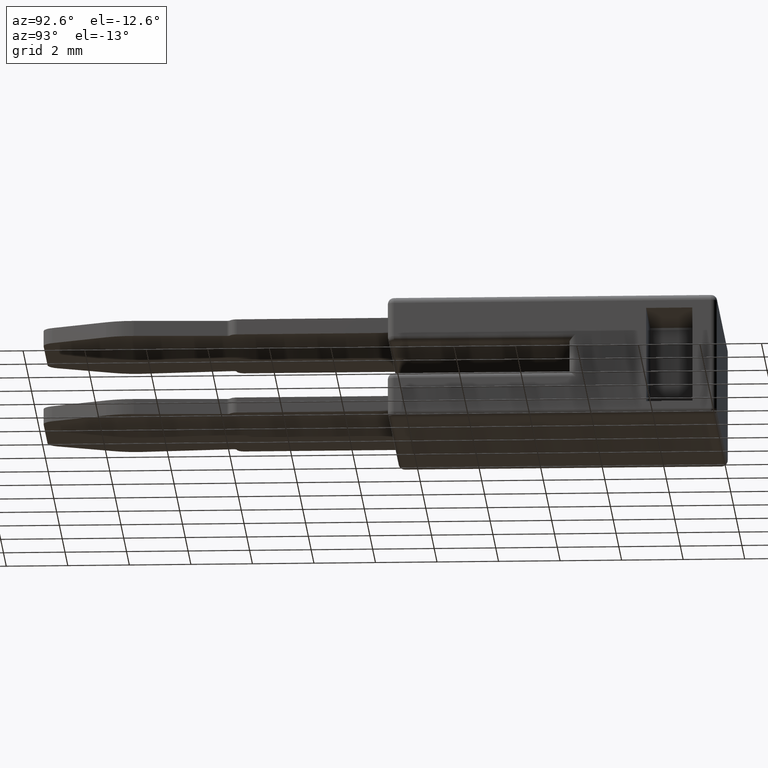
[diagram: clean part render]
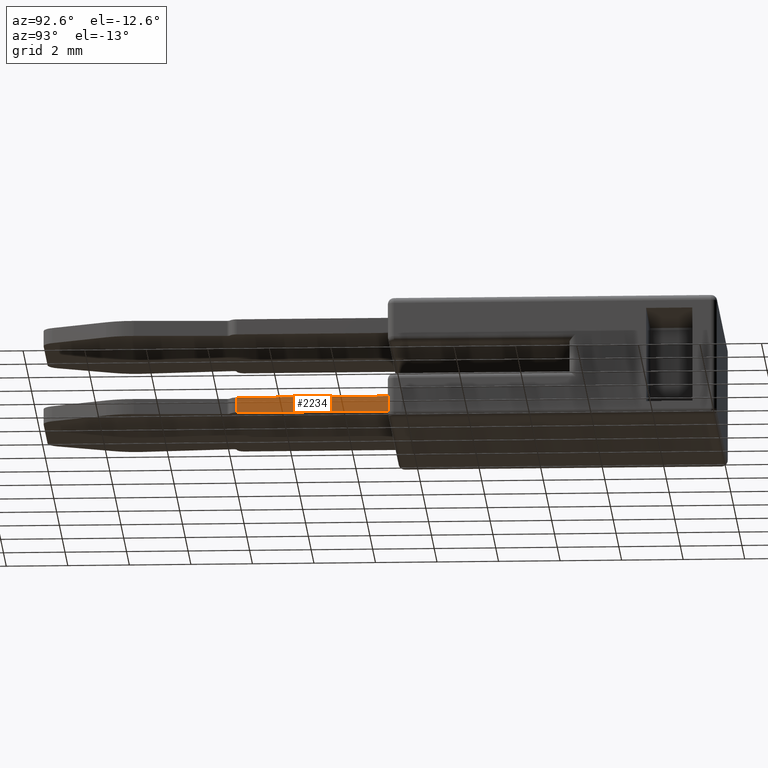
[diagram: same view with one face highlighted and labeled with its STEP entity id]
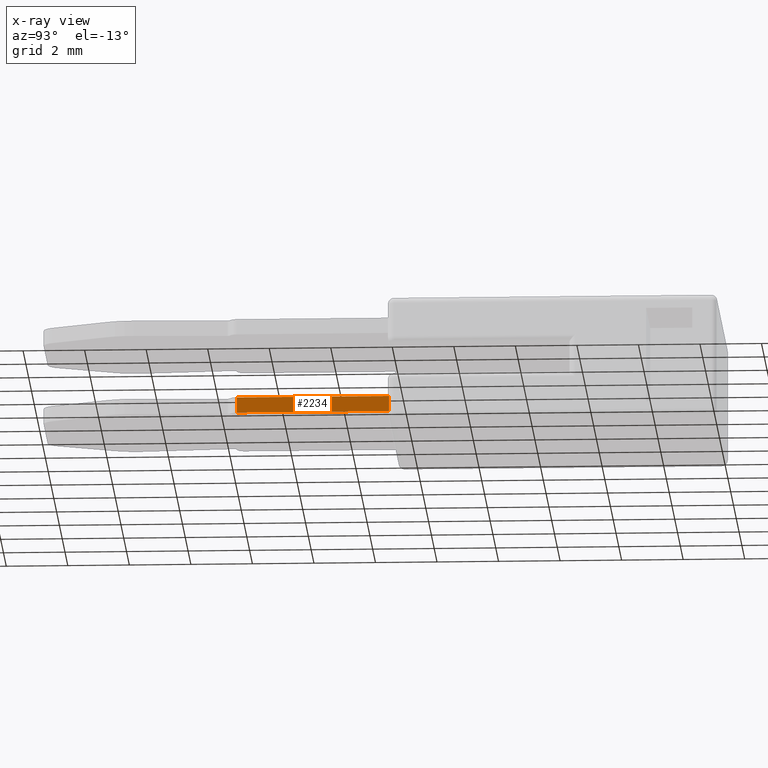
[diagram: x-ray of the same camera — body ghosted, the highlighted face saturated]
A machine part, auxiliary view. The second image highlights one B-rep face of the part: STEP entity #2234.
The next image is the same camera in x-ray: the body ghosted, the highlighted face saturated — about 0% of this face is hidden behind the body in this view.
In plain terms, the highlighted planar face has unit normal (-1, -0.0002, 0).
Its self-contained STEP definition (entity closure, byte-faithful):
#704=DIRECTION('',(-3.906817583496E-7,2.844724185217E-8,9.999999999999E-1));
#705=VECTOR('',#704,5.000000007605E-1);
#706=CARTESIAN_POINT('',(2.900885209625E0,-3.646249164768E0,-1.550000002612E0));
#707=LINE('',#706,#705);
#708=DIRECTION('',(1.356733253787E-4,-9.999999907964E-1,0.E0));
#709=VECTOR('',#708,4.950749065358E0);
#710=CARTESIAN_POINT('',(2.900213329696E0,1.304499869248E0,-1.050000001852E0));
#711=LINE('',#710,#709);
#712=DIRECTION('',(0.E0,0.E0,1.E0));
#713=VECTOR('',#712,5.000000007604E-1);
#714=CARTESIAN_POINT('',(2.900213329696E0,1.304499869248E0,-1.550000002612E0));
#715=LINE('',#714,#713);
#716=DIRECTION('',(-1.357127818211E-4,9.999999907910E-1,0.E0));
#717=VECTOR('',#716,4.950749079608E0);
#718=CARTESIAN_POINT('',(2.900885209625E0,-3.646249164768E0,-1.550000002612E0));
#719=LINE('',#718,#717);
#1082=CARTESIAN_POINT('',(2.900885209625E0,-3.646249164768E0,
-1.550000002612E0));
#1083=CARTESIAN_POINT('',(2.900213329696E0,1.304499869248E0,-1.550000002612E0));
#1084=VERTEX_POINT('',#1082);
#1085=VERTEX_POINT('',#1083);
#1165=CARTESIAN_POINT('',(2.900213329696E0,1.304499869248E0,-1.050000001852E0));
#1166=CARTESIAN_POINT('',(2.900885014285E0,-3.646249150545E0,
-1.050000001852E0));
#1167=VERTEX_POINT('',#1165);
#1168=VERTEX_POINT('',#1166);
#2223=CARTESIAN_POINT('',(2.901023289933E0,-3.645456274421E0,2.E0));
#2224=DIRECTION('',(-9.999999807222E-1,-1.963557327553E-4,0.E0));
#2225=DIRECTION('',(1.963557327553E-4,-9.999999807222E-1,0.E0));
#2226=AXIS2_PLACEMENT_3D('',#2223,#2224,#2225);
#2227=PLANE('',#2226);
#2228=ORIENTED_EDGE('',*,*,#2034,.F.);
#2229=ORIENTED_EDGE('',*,*,#1575,.F.);
#2230=ORIENTED_EDGE('',*,*,#2140,.F.);
#2231=ORIENTED_EDGE('',*,*,#2216,.T.);
#2232=EDGE_LOOP('',(#2228,#2229,#2230,#2231));
#2233=FACE_OUTER_BOUND('',#2232,.F.);
#2234=ADVANCED_FACE('',(#2233),#2227,.F.);
#1575=EDGE_CURVE('',#1085,#1167,#715,.T.);
#2034=EDGE_CURVE('',#1167,#1168,#711,.T.);
#2140=EDGE_CURVE('',#1084,#1085,#719,.T.);
#2216=EDGE_CURVE('',#1084,#1168,#707,.T.);